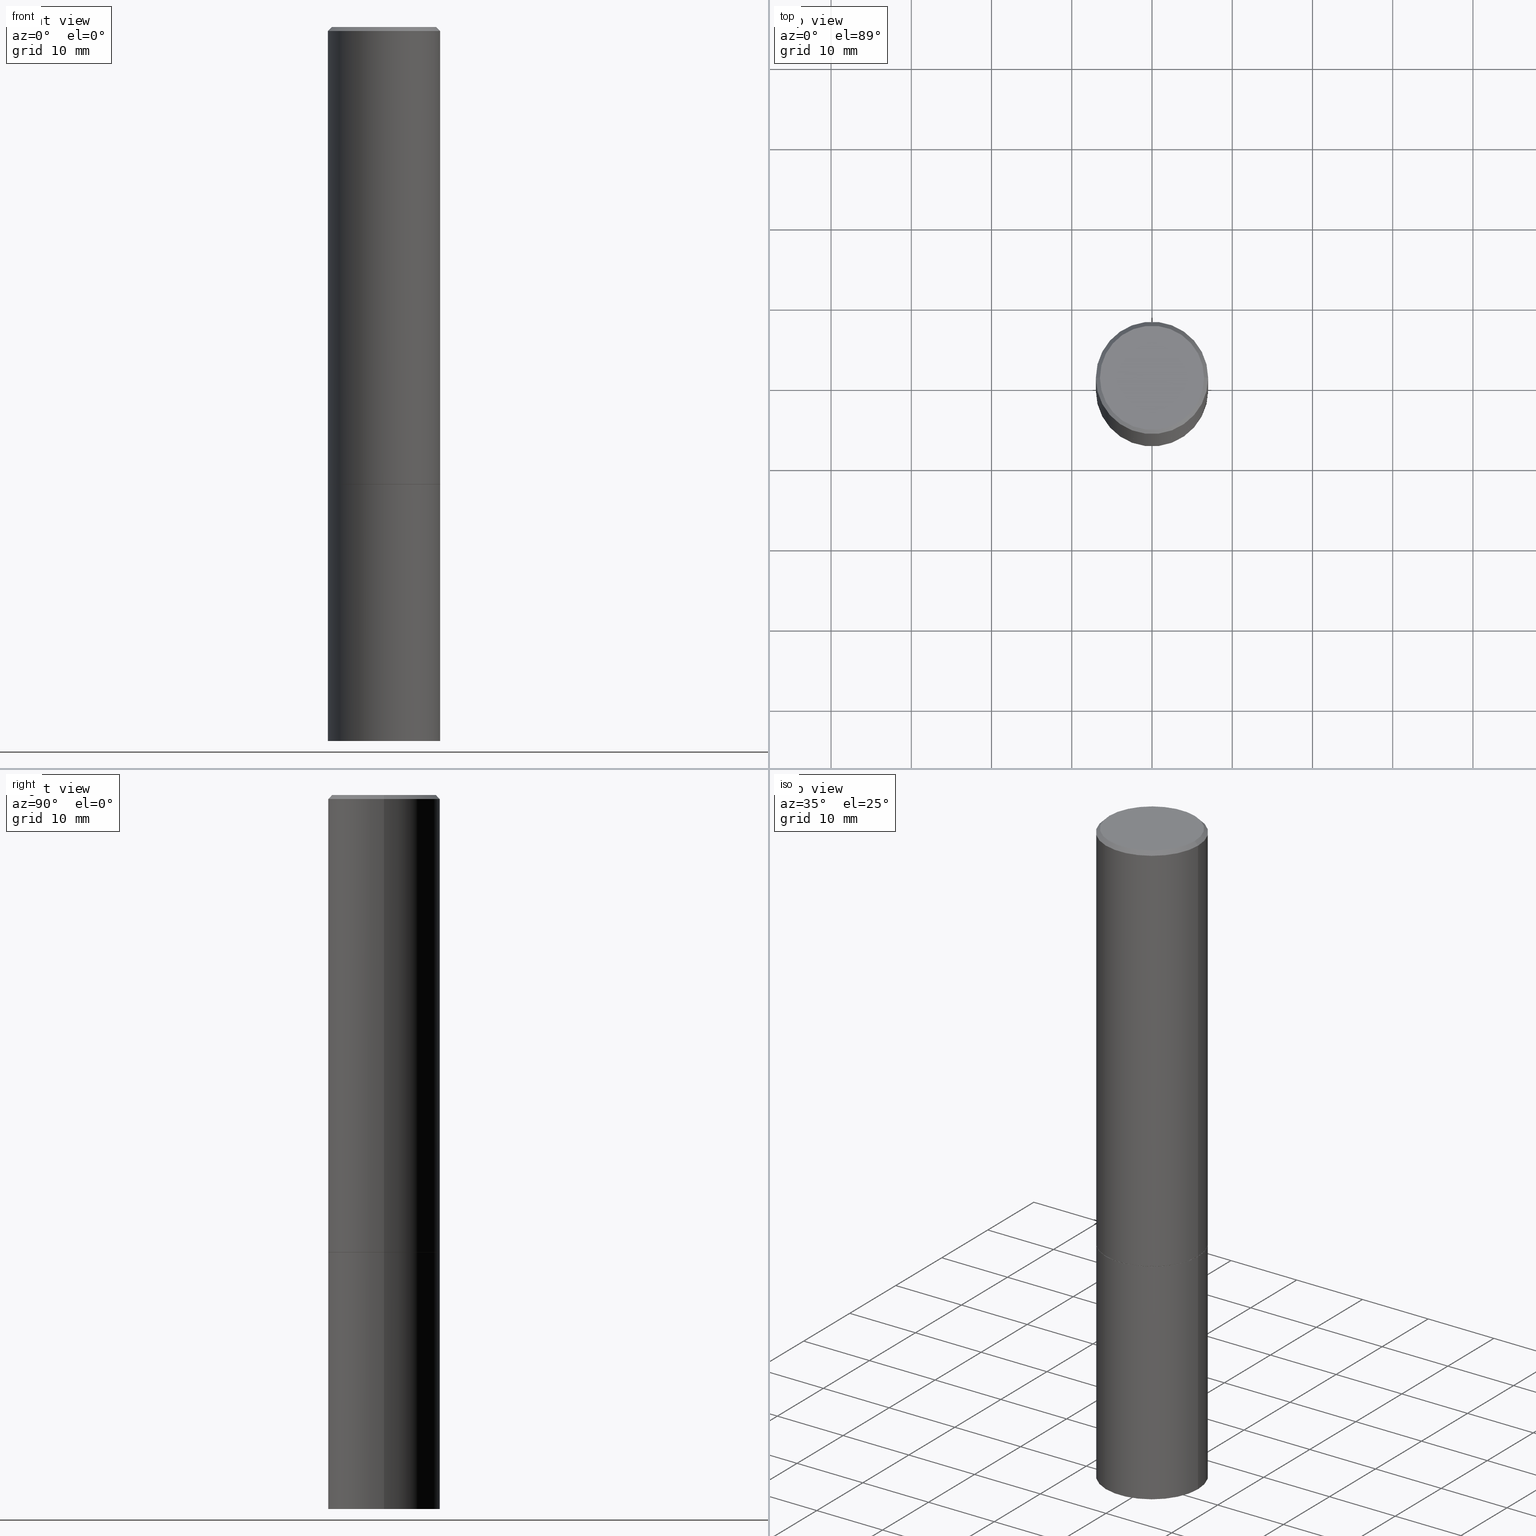
[diagram: canonical four-view strip — front | top / right | iso, engineering-drawing reading convention]
A machine part, canonical four-view strip (front | top / right | iso — engineering-drawing reading convention). The complete STEP part file that produces these views, byte-faithful:
ISO-10303-21;
HEADER;
FILE_DESCRIPTION (( 'STEP AP203' ),
    '1' );
FILE_NAME ('48644.STEP',
    '2024-02-28T12:55:34',
    ( '' ),
    ( '' ),
    'SwSTEP 2.0',
    'SolidWorks 2023',
    '' );
FILE_SCHEMA (( 'CONFIG_CONTROL_DESIGN' ));
ENDSEC;

DATA;
#1 = AXIS2_PLACEMENT_3D ( 'NONE', #161, #223, #277 ) ;
#2 = VECTOR ( 'NONE', #330, 39.37007874015748854 ) ;
#3 = DIRECTION ( 'NONE',  ( 1.000000000000000000, -6.982962677686269866E-15, 0.000000000000000000 ) ) ;
#4 = DIRECTION ( 'NONE',  ( 1.000000000000000000, -6.982962677686269866E-15, 0.000000000000000000 ) ) ;
#5 = DIRECTION ( 'NONE',  ( -2.445468806185136597E-29, 3.491481338843145583E-15, 1.000000000000000000 ) ) ;
#6 = VECTOR ( 'NONE', #332, 39.37007874015748143 ) ;
#7 = DIRECTION ( 'NONE',  ( -1.000000000000000000, 6.982962677686267499E-15, 0.000000000000000000 ) ) ;
#8 = EDGE_CURVE ( 'NONE', #169, #233, #235, .T. ) ;
#9 = APPLICATION_CONTEXT ( 'configuration controlled 3d designs of mechanical parts and assemblies' ) ;
#10 = VECTOR ( 'NONE', #217, 39.37007874015748854 ) ;
#11 = DIRECTION ( 'NONE',  ( -2.445468806185136597E-29, 3.491481338843145583E-15, 1.000000000000000000 ) ) ;
#12 = CARTESIAN_POINT ( 'NONE',  ( 0.2746000000000000107, -9.752754823790549702E-15, -2.244099999999999540 ) ) ;
#13 = DIMENSIONAL_EXPONENTS ( 1.000000000000000000, 0.000000000000000000, 0.000000000000000000, 0.000000000000000000, 0.000000000000000000, 0.000000000000000000, 0.000000000000000000 ) ;
#14 =( NAMED_UNIT ( * ) SI_UNIT ( $, .STERADIAN. ) SOLID_ANGLE_UNIT ( ) );
#15 = EDGE_CURVE ( 'NONE', #203, #286, #32, .T. ) ;
#16 = DIRECTION ( 'NONE',  ( -2.445468806185136597E-29, 3.491481338843145583E-15, 1.000000000000000000 ) ) ;
#17 = DIRECTION ( 'NONE',  ( 2.445468806185136597E-29, -3.491481338843145583E-15, -1.000000000000000000 ) ) ;
#18 = LOCAL_TIME ( 7, 55, 34.00000000000000000, #230 ) ;
#19 = PERSON_AND_ORGANIZATION_ROLE ( 'classification_officer' ) ;
#20 = DIRECTION ( 'NONE',  ( -1.000000000000000000, 6.982962677686265922E-15, -4.876176775795935793E-29 ) ) ;
#21 = ORIENTED_EDGE ( 'NONE', *, *, #296, .T. ) ;
#22 = DATE_TIME_ROLE ( 'creation_date' ) ;
#23 = CLOSED_SHELL ( 'NONE', ( #88, #240, #281, #356 ) ) ;
#24 = ORIENTED_EDGE ( 'NONE', *, *, #311, .T. ) ;
#25 = AXIS2_PLACEMENT_3D ( 'NONE', #353, #358, #42 ) ;
#26 = APPROVAL_STATUS ( 'not_yet_approved' ) ;
#27 = ORIENTED_EDGE ( 'NONE', *, *, #222, .T. ) ;
#28 = APPLICATION_PROTOCOL_DEFINITION ( 'international standard', 'config_control_design', 1994, #9 ) ;
#29 = CC_DESIGN_DATE_AND_TIME_ASSIGNMENT ( #116, #337, ( #207 ) ) ;
#30 = CARTESIAN_POINT ( 'NONE',  ( 1.784845260416607569E-15, 0.2555999999999997163, -8.881541177182066117E-16 ) ) ;
#31 = ORIENTED_EDGE ( 'NONE', *, *, #289, .F. ) ;
#32 = CIRCLE ( 'NONE', #75, 0.2555999999999997163 ) ;
#33 = ORIENTED_EDGE ( 'NONE', *, *, #338, .F. ) ;
#34 = ORIENTED_EDGE ( 'NONE', *, *, #348, .F. ) ;
#35 = CARTESIAN_POINT ( 'NONE',  ( -0.2756000000000000116, -8.076261588080363510E-15, -2.244099999999999540 ) ) ;
#36 = AXIS2_PLACEMENT_3D ( 'NONE', #288, #144, #214 ) ;
#37 = ORIENTED_EDGE ( 'NONE', *, *, #162, .T. ) ;
#38 = ORIENTED_EDGE ( 'NONE', *, *, #362, .T. ) ;
#39 = FACE_OUTER_BOUND ( 'NONE', #261, .T. ) ;
#40 = CIRCLE ( 'NONE', #36, 0.2756000000000000116 ) ;
#41 = DIRECTION ( 'NONE',  ( 1.000000000000000000, -6.982962677686267499E-15, 4.876176775795935793E-29 ) ) ;
#42 = DIRECTION ( 'NONE',  ( 1.000000000000000000, -6.982962677686269866E-15, 0.000000000000000000 ) ) ;
#43 = CARTESIAN_POINT ( 'NONE',  ( -0.2755999999999997896, 1.854674887193470472E-15, -0.02000000000000005940 ) ) ;
#44 = DIRECTION ( 'NONE',  ( 1.000000000000000000, -6.982962677686265922E-15, 0.000000000000000000 ) ) ;
#45 = CALENDAR_DATE ( 2024, 28, 2 ) ;
#46 = ORIENTED_EDGE ( 'NONE', *, *, #279, .T. ) ;
#47 = DATE_AND_TIME ( #53, #232 ) ;
#48 = CARTESIAN_POINT ( 'NONE',  ( -0.2756000000000000116, 1.958255779754836195E-15, -1.355658510874252007E-29 ) ) ;
#49 = VERTEX_POINT ( 'NONE', #345 ) ;
#50 = DIRECTION ( 'NONE',  ( 0.000000000000000000, 0.000000000000000000, 1.000000000000000000 ) ) ;
#51 = CARTESIAN_POINT ( 'NONE',  ( 1.924504513970389780E-15, 0.2755999999999921846, -2.244100000000000428 ) ) ;
#52 = EDGE_LOOP ( 'NONE', ( #322, #37 ) ) ;
#53 = CALENDAR_DATE ( 2024, 28, 2 ) ;
#54 = CARTESIAN_POINT ( 'NONE',  ( 4.890937612370288047E-31, -6.982962677686311331E-17, -0.02000000000000005940 ) ) ;
#55 = VECTOR ( 'NONE', #350, 39.37007874015748143 ) ;
#56 = DATE_AND_TIME ( #316, #114 ) ;
#57 = DIRECTION ( 'NONE',  ( -2.445468806185136597E-29, 3.491481338843145583E-15, 1.000000000000000000 ) ) ;
#58 = ORIENTED_EDGE ( 'NONE', *, *, #204, .F. ) ;
#59 = ORIENTED_EDGE ( 'NONE', *, *, #165, .F. ) ;
#60 = DIRECTION ( 'NONE',  ( 2.445468806185136597E-29, -3.491481338843145583E-15, -1.000000000000000000 ) ) ;
#61 = CIRCLE ( 'NONE', #206, 0.2555999999999997163 ) ;
#62 = AXIS2_PLACEMENT_3D ( 'NONE', #69, #328, #306 ) ;
#63 = LOCAL_TIME ( 7, 55, 34.00000000000000000, #258 ) ;
#64 = DIRECTION ( 'NONE',  ( 1.000000000000000000, -6.982962677686267499E-15, 4.876176775795935793E-29 ) ) ;
#65 = DIRECTION ( 'NONE',  ( -2.445468806185136597E-29, 3.491481338843145583E-15, 1.000000000000000000 ) ) ;
#66 = FACE_OUTER_BOUND ( 'NONE', #154, .T. ) ;
#67 = APPROVAL ( #26, 'UNSPECIFIED' ) ;
#68 = CC_DESIGN_SECURITY_CLASSIFICATION ( #207, ( #357 ) ) ;
#69 = CARTESIAN_POINT ( 'NONE',  ( 0.000000000000000000, 0.000000000000000000, 0.000000000000000000 ) ) ;
#70 = CARTESIAN_POINT ( 'NONE',  ( 5.485431079153878028E-29, -7.831741791159057755E-15, -2.243099999999999206 ) ) ;
#71 = MANIFOLD_SOLID_BREP ( 'Body-Move/Copy2[1]', #23 ) ;
#72 = LINE ( 'NONE', #187, #354 ) ;
#73 = CARTESIAN_POINT ( 'NONE',  ( 4.890937612370288047E-31, -6.982962677686311331E-17, -0.02000000000000005940 ) ) ;
#74 = DIRECTION ( 'NONE',  ( 1.000000000000000000, -6.982962677686265922E-15, 4.876176775795935793E-29 ) ) ;
#75 = AXIS2_PLACEMENT_3D ( 'NONE', #323, #293, #238 ) ;
#76 = AXIS2_PLACEMENT_3D ( 'NONE', #54, #57, #177 ) ;
#77 = DIRECTION ( 'NONE',  ( -2.445468806185136597E-29, 3.491481338843145583E-15, 1.000000000000000000 ) ) ;
#78 = DIRECTION ( 'NONE',  ( 0.7071067811865473507, -7.319954787623256045E-15, -0.7071067811865476838 ) ) ;
#79 = CARTESIAN_POINT ( 'NONE',  ( 0.2756000000000000116, -9.759737786468235716E-15, -2.244099999999999540 ) ) ;
#80 = ORIENTED_EDGE ( 'NONE', *, *, #8, .F. ) ;
#81 = CONICAL_SURFACE ( 'NONE', #106, 0.2746000000000000107, 0.7853981633974482790 ) ;
#82 = AXIS2_PLACEMENT_3D ( 'NONE', #118, #50, #255 ) ;
#83 = ORIENTED_EDGE ( 'NONE', *, *, #267, .F. ) ;
#84 = PERSON_AND_ORGANIZATION_ROLE ( 'creator' ) ;
#85 = EDGE_LOOP ( 'NONE', ( #59, #225 ) ) ;
#86 = CALENDAR_DATE ( 2024, 28, 2 ) ;
#87 = EDGE_LOOP ( 'NONE', ( #24, #46 ) ) ;
#88 = ADVANCED_FACE ( 'NONE', ( #126 ), #300, .T. ) ;
#89 = PERSON_AND_ORGANIZATION ( #294, #153 ) ;
#90 = DIRECTION ( 'NONE',  ( -1.000000000000000000, 6.982962677686265922E-15, -4.876176775795935793E-29 ) ) ;
#91 = CIRCLE ( 'NONE', #1, 0.2756000000000000671 ) ;
#92 = ORIENTED_EDGE ( 'NONE', *, *, #305, .T. ) ;
#93 = DIRECTION ( 'NONE',  ( 1.000000000000000000, -6.982962677686267499E-15, 4.876201967404967742E-29 ) ) ;
#94 = CYLINDRICAL_SURFACE ( 'NONE', #95, 0.2755999999999999006 ) ;
#95 = AXIS2_PLACEMENT_3D ( 'NONE', #181, #65, #344 ) ;
#96 = CIRCLE ( 'NONE', #76, 0.2755999999999997896 ) ;
#97 = ORIENTED_EDGE ( 'NONE', *, *, #311, .F. ) ;
#98 = ORIENTED_EDGE ( 'NONE', *, *, #296, .F. ) ;
#99 = CC_DESIGN_PERSON_AND_ORGANIZATION_ASSIGNMENT ( #364, #19, ( #207 ) ) ;
#100 = CIRCLE ( 'NONE', #292, 0.2746000000000000107 ) ;
#101 = APPROVAL_PERSON_ORGANIZATION ( #163, #231, #110 ) ;
#102 = FACE_OUTER_BOUND ( 'NONE', #85, .T. ) ;
#103 = CARTESIAN_POINT ( 'NONE',  ( 0.2756000000000000671, -9.756246305129392709E-15, -2.243099999999999206 ) ) ;
#104 = CARTESIAN_POINT ( 'NONE',  ( 0.2755999999999997896, -1.960582874962695828E-15, -0.02000000000000005940 ) ) ;
#105 = DIRECTION ( 'NONE',  ( 2.438088387897960049E-29, -3.491481338843145188E-15, -1.000000000000000000 ) ) ;
#106 = AXIS2_PLACEMENT_3D ( 'NONE', #239, #149, #3 ) ;
#107 = ADVANCED_FACE ( 'NONE', ( #266 ), #81, .T. ) ;
#108 = PERSON_AND_ORGANIZATION_ROLE ( 'creator' ) ;
#109 = FACE_OUTER_BOUND ( 'NONE', #282, .T. ) ;
#110 = APPROVAL_ROLE ( '' ) ;
#111 = EDGE_LOOP ( 'NONE', ( #80, #270, #208, #336 ) ) ;
#112 = PERSON_AND_ORGANIZATION ( #294, #153 ) ;
#113 = CONICAL_SURFACE ( 'NONE', #321, 0.2755999999999997896, 0.7853981633974480570 ) ;
#114 = LOCAL_TIME ( 7, 55, 34.00000000000000000, #142 ) ;
#115 = EDGE_LOOP ( 'NONE', ( #318, #307, #21, #83 ) ) ;
#116 = DATE_AND_TIME ( #86, #284 ) ;
#117 = DIRECTION ( 'NONE',  ( 2.438088387897960049E-29, -3.491481338843145188E-15, -1.000000000000000000 ) ) ;
#118 = CARTESIAN_POINT ( 'NONE',  ( 0.000000000000000000, 0.000000000000000000, 0.000000000000000000 ) ) ;
#119 = DIRECTION ( 'NONE',  ( -2.445468806185136877E-29, 3.491481338843145188E-15, 1.000000000000000000 ) ) ;
#120 = ORIENTED_EDGE ( 'NONE', *, *, #289, .T. ) ;
#121 = CARTESIAN_POINT ( 'NONE',  ( 5.487876547960063631E-29, -7.835233272497900762E-15, -2.244099999999999540 ) ) ;
#122 = PRODUCT ( '48644', '48644', '', ( #312 ) ) ;
#123 = CARTESIAN_POINT ( 'NONE',  ( 8.568678149992099474E-29, -1.223380146317249786E-14, -3.503899999999999793 ) ) ;
#124 = CIRCLE ( 'NONE', #363, 0.2755999999999997896 ) ;
#125 = LINE ( 'NONE', #355, #179 ) ;
#126 = FACE_OUTER_BOUND ( 'NONE', #178, .T. ) ;
#127 = LENGTH_MEASURE_WITH_UNIT ( LENGTH_MEASURE( 0.02539999999999999897 ), #271 );
#128 = UNCERTAINTY_MEASURE_WITH_UNIT (LENGTH_MEASURE( 1.000000000000000082E-05 ), #241, 'distance_accuracy_value', 'NONE');
#129 = CARTESIAN_POINT ( 'NONE',  ( 5.487876547960063631E-29, -7.835233272497900762E-15, -2.244099999999999540 ) ) ;
#130 = EDGE_CURVE ( 'NONE', #169, #340, #100, .T. ) ;
#131 = LINE ( 'NONE', #43, #6 ) ;
#132 = LINE ( 'NONE', #12, #2 ) ;
#133 = CARTESIAN_POINT ( 'NONE',  ( -0.2555999999999997163, 1.819760073805039218E-15, 8.537024980188219272E-18 ) ) ;
#134 = DIRECTION ( 'NONE',  ( 1.000000000000000000, -6.982962677686269866E-15, 0.000000000000000000 ) ) ;
#135 = LINE ( 'NONE', #104, #139 ) ;
#136 = PERSON_AND_ORGANIZATION ( #294, #153 ) ;
#137 = APPLICATION_PROTOCOL_DEFINITION ( 'international standard', 'config_control_design', 1994, #359 ) ;
#138 = DATE_AND_TIME ( #45, #18 ) ;
#139 = VECTOR ( 'NONE', #78, 39.37007874015748143 ) ;
#140 = FACE_OUTER_BOUND ( 'NONE', #52, .T. ) ;
#141 = VERTEX_POINT ( 'NONE', #234 ) ;
#142 = COORDINATED_UNIVERSAL_TIME_OFFSET ( 5, 0, .BEHIND. ) ;
#143 = ORIENTED_EDGE ( 'NONE', *, *, #279, .F. ) ;
#144 = DIRECTION ( 'NONE',  ( -2.445468806185136597E-29, 3.491481338843145583E-15, 1.000000000000000000 ) ) ;
#145 = ORIENTED_EDGE ( 'NONE', *, *, #192, .F. ) ;
#146 = ORIENTED_EDGE ( 'NONE', *, *, #130, .F. ) ;
#147 = DIRECTION ( 'NONE',  ( -2.445468806185136597E-29, 3.491481338843145583E-15, 1.000000000000000000 ) ) ;
#148 = ADVANCED_FACE ( 'NONE', ( #66 ), #94, .T. ) ;
#149 = DIRECTION ( 'NONE',  ( -2.445468806185136597E-29, 3.491481338843145583E-15, 1.000000000000000000 ) ) ;
#150 = CARTESIAN_POINT ( 'NONE',  ( 5.487876547960063631E-29, -7.835233272497900762E-15, -2.244099999999999540 ) ) ;
#151 = DIRECTION ( 'NONE',  ( 1.000000000000000000, -6.982962677686265922E-15, 0.000000000000000000 ) ) ;
#152 = AXIS2_PLACEMENT_3D ( 'NONE', #129, #302, #74 ) ;
#153 = ORGANIZATION ( 'UNSPECIFIED', 'UNSPECIFIED', '' ) ;
#154 = EDGE_LOOP ( 'NONE', ( #349, #228, #186, #290 ) ) ;
#155 = CARTESIAN_POINT ( 'NONE',  ( 5.487876547960063631E-29, -7.835233272497900762E-15, -2.244099999999999540 ) ) ;
#156 = FACE_OUTER_BOUND ( 'NONE', #115, .T. ) ;
#157 = PLANE ( 'NONE',  #173 ) ;
#158 = CC_DESIGN_PERSON_AND_ORGANIZATION_ASSIGNMENT ( #309, #84, ( #319 ) ) ;
#159 = CYLINDRICAL_SURFACE ( 'NONE', #62, 0.2756000000000000116 ) ;
#160 = LINE ( 'NONE', #242, #55 ) ;
#161 = CARTESIAN_POINT ( 'NONE',  ( 5.485431079153878028E-29, -7.831741791159057755E-15, -2.243099999999999206 ) ) ;
#162 = EDGE_CURVE ( 'NONE', #286, #203, #61, .T. ) ;
#163 = PERSON_AND_ORGANIZATION ( #294, #153 ) ;
#164 = AXIS2_PLACEMENT_3D ( 'NONE', #150, #211, #278 ) ;
#165 = EDGE_CURVE ( 'NONE', #141, #361, #314, .T. ) ;
#166 = VERTEX_POINT ( 'NONE', #35 ) ;
#167 = APPROVAL_ROLE ( '' ) ;
#168 = CARTESIAN_POINT ( 'NONE',  ( 0.2555999999999997163, -1.857063081596548453E-15, 8.537024980213556806E-18 ) ) ;
#169 = VERTEX_POINT ( 'NONE', #210 ) ;
#170 = PRODUCT_DEFINITION_SHAPE ( 'NONE', 'NONE',  #319 ) ;
#171 = ADVANCED_FACE ( 'NONE', ( #268 ), #113, .T. ) ;
#172 = CALENDAR_DATE ( 2024, 28, 2 ) ;
#173 = AXIS2_PLACEMENT_3D ( 'NONE', #275, #105, #220 ) ;
#174 = CC_DESIGN_APPROVAL ( #67, ( #207 ) ) ;
#175 = ORIENTED_EDGE ( 'NONE', *, *, #15, .F. ) ;
#176 = APPROVAL_ROLE ( '' ) ;
#177 = DIRECTION ( 'NONE',  ( 1.000000000000000000, -6.982962677686267499E-15, 0.000000000000000000 ) ) ;
#178 = EDGE_LOOP ( 'NONE', ( #201, #120, #97, #365 ) ) ;
#179 = VECTOR ( 'NONE', #247, 39.37007874015748143 ) ;
#180 = EDGE_LOOP ( 'NONE', ( #257, #196, #215, #33 ) ) ;
#181 = CARTESIAN_POINT ( 'NONE',  ( 0.000000000000000000, 0.000000000000000000, 0.000000000000000000 ) ) ;
#182 = CARTESIAN_POINT ( 'NONE',  ( -0.2746000000000000107, -5.884082920100665181E-15, -2.244099999999999540 ) ) ;
#183 = CARTESIAN_POINT ( 'NONE',  ( -2.087702828670439639E-46, 2.980686340760894400E-32, 8.537024980200822558E-18 ) ) ;
#184 = AXIS2_PLACEMENT_3D ( 'NONE', #51, #117, #20 ) ;
#185 = APPROVAL_PERSON_ORGANIZATION ( #112, #227, #176 ) ;
#186 = ORIENTED_EDGE ( 'NONE', *, *, #192, .T. ) ;
#187 = CARTESIAN_POINT ( 'NONE',  ( 0.2756000000000000116, -1.924504513970335348E-15, 1.343874319409359987E-29 ) ) ;
#188 = FACE_OUTER_BOUND ( 'NONE', #317, .T. ) ;
#189 = AXIS2_PLACEMENT_3D ( 'NONE', #155, #272, #134 ) ;
#190 = CIRCLE ( 'NONE', #164, 0.2756000000000000116 ) ;
#191 = CYLINDRICAL_SURFACE ( 'NONE', #326, 0.2755999999999999006 ) ;
#192 = EDGE_CURVE ( 'NONE', #335, #49, #125, .T. ) ;
#193 = FACE_OUTER_BOUND ( 'NONE', #111, .T. ) ;
#194 = CARTESIAN_POINT ( 'NONE',  ( 5.487876547960063631E-29, -7.835233272497900762E-15, -2.244099999999999540 ) ) ;
#195 = VERTEX_POINT ( 'NONE', #79 ) ;
#196 = ORIENTED_EDGE ( 'NONE', *, *, #8, .T. ) ;
#197 = PERSON_AND_ORGANIZATION_ROLE ( 'design_owner' ) ;
#198 = APPROVAL_PERSON_ORGANIZATION ( #136, #67, #167 ) ;
#199 = MANIFOLD_SOLID_BREP ( 'Body-Move/Copy2[2]', #253 ) ;
#200 = PLANE ( 'NONE',  #184 ) ;
#201 = ORIENTED_EDGE ( 'NONE', *, *, #165, .T. ) ;
#202 = DIRECTION ( 'NONE',  ( 2.438088387897960049E-29, -3.491481338843145188E-15, -1.000000000000000000 ) ) ;
#203 = VERTEX_POINT ( 'NONE', #133 ) ;
#204 = EDGE_CURVE ( 'NONE', #340, #169, #346, .T. ) ;
#205 = SECURITY_CLASSIFICATION_LEVEL ( 'unclassified' ) ;
#206 = AXIS2_PLACEMENT_3D ( 'NONE', #183, #5, #93 ) ;
#207 = SECURITY_CLASSIFICATION ( '', '', #205 ) ;
#208 = ORIENTED_EDGE ( 'NONE', *, *, #338, .T. ) ;
#209 = CC_DESIGN_PERSON_AND_ORGANIZATION_ASSIGNMENT ( #89, #108, ( #357 ) ) ;
#210 = CARTESIAN_POINT ( 'NONE',  ( -0.2746000000000000107, -5.878784465752442779E-15, -2.244099999999999540 ) ) ;
#211 = DIRECTION ( 'NONE',  ( -2.445468806185136597E-29, 3.491481338843145583E-15, 1.000000000000000000 ) ) ;
#212 = CONICAL_SURFACE ( 'NONE', #25, 0.2746000000000000107, 0.7853981633974482790 ) ;
#213 = EDGE_LOOP ( 'NONE', ( #34, #175, #313, #265 ) ) ;
#214 = DIRECTION ( 'NONE',  ( 1.000000000000000000, -6.982962677686265922E-15, 0.000000000000000000 ) ) ;
#215 = ORIENTED_EDGE ( 'NONE', *, *, #362, .F. ) ;
#216 = CC_DESIGN_PERSON_AND_ORGANIZATION_ASSIGNMENT ( #226, #360, ( #357 ) ) ;
#217 = DIRECTION ( 'NONE',  ( -0.7071067811865474617, 7.493145998870352582E-15, 0.7071067811865474617 ) ) ;
#218 = ADVANCED_FACE ( 'NONE', ( #109 ), #333, .F. ) ;
#219 = CARTESIAN_POINT ( 'NONE',  ( 0.2746000000000000107, -9.752754823790549702E-15, -2.244099999999999540 ) ) ;
#220 = DIRECTION ( 'NONE',  ( -1.000000000000000000, 6.982962677686265922E-15, -4.876176775795935793E-29 ) ) ;
#221 = CARTESIAN_POINT ( 'NONE',  ( 4.890937612370288047E-31, -6.982962677686311331E-17, -0.02000000000000005940 ) ) ;
#222 = EDGE_CURVE ( 'NONE', #233, #262, #160, .T. ) ;
#223 = DIRECTION ( 'NONE',  ( -2.445468806185136597E-29, 3.491481338843145583E-15, 1.000000000000000000 ) ) ;
#224 = PERSON_AND_ORGANIZATION ( #294, #153 ) ;
#225 = ORIENTED_EDGE ( 'NONE', *, *, #305, .F. ) ;
#226 = PERSON_AND_ORGANIZATION ( #294, #153 ) ;
#227 = APPROVAL ( #308, 'UNSPECIFIED' ) ;
#228 = ORIENTED_EDGE ( 'NONE', *, *, #269, .T. ) ;
#229 = APPROVAL_DATE_TIME ( #138, #227 ) ;
#230 = COORDINATED_UNIVERSAL_TIME_OFFSET ( 5, 0, .BEHIND. ) ;
#231 = APPROVAL ( #260, 'UNSPECIFIED' ) ;
#232 = LOCAL_TIME ( 7, 55, 34.00000000000000000, #280 ) ;
#233 = VERTEX_POINT ( 'NONE', #352 ) ;
#234 = CARTESIAN_POINT ( 'NONE',  ( 0.2756000000000000116, -1.415830597714283281E-14, -3.503899999999999793 ) ) ;
#235 = LINE ( 'NONE', #182, #10 ) ;
#236 =( GEOMETRIC_REPRESENTATION_CONTEXT ( 3 ) GLOBAL_UNCERTAINTY_ASSIGNED_CONTEXT ( ( #128 ) ) GLOBAL_UNIT_ASSIGNED_CONTEXT ( ( #241, #244, #14 ) ) REPRESENTATION_CONTEXT ( 'NONE', 'WORKASPACE' ) );
#237 = ADVANCED_FACE ( 'NONE', ( #188 ), #191, .T. ) ;
#238 = DIRECTION ( 'NONE',  ( 1.000000000000000000, -6.982962677686267499E-15, 4.876201967404967742E-29 ) ) ;
#239 = CARTESIAN_POINT ( 'NONE',  ( 5.487876547960063631E-29, -7.835233272497900762E-15, -2.244099999999999540 ) ) ;
#240 = ADVANCED_FACE ( 'NONE', ( #102 ), #157, .T. ) ;
#241 =( CONVERSION_BASED_UNIT ( 'INCH', #127 ) LENGTH_UNIT ( ) NAMED_UNIT ( #13 ) );
#242 = CARTESIAN_POINT ( 'NONE',  ( -0.2755999999999999006, 1.958255779754835406E-15, -1.355658510874251446E-29 ) ) ;
#243 = AXIS2_PLACEMENT_3D ( 'NONE', #320, #147, #64 ) ;
#244 =( NAMED_UNIT ( * ) PLANE_ANGLE_UNIT ( ) SI_UNIT ( $, .RADIAN. ) );
#245 = DIRECTION ( 'NONE',  ( 1.000000000000000000, -6.982962677686264344E-15, 0.000000000000000000 ) ) ;
#246 = EDGE_CURVE ( 'NONE', #262, #49, #124, .T. ) ;
#247 = DIRECTION ( 'NONE',  ( -2.445468806185136877E-29, 3.491481338843145188E-15, 1.000000000000000000 ) ) ;
#248 = CARTESIAN_POINT ( 'NONE',  ( 0.000000000000000000, 0.000000000000000000, 0.000000000000000000 ) ) ;
#249 = VECTOR ( 'NONE', #119, 39.37007874015748143 ) ;
#250 = SHAPE_DEFINITION_REPRESENTATION ( #170, #259 ) ;
#251 = COORDINATED_UNIVERSAL_TIME_OFFSET ( 5, 0, .BEHIND. ) ;
#252 = ORIENTED_EDGE ( 'NONE', *, *, #263, .T. ) ;
#253 = CLOSED_SHELL ( 'NONE', ( #107, #237, #341, #171, #148, #329, #218, #291 ) ) ;
#254 = CC_DESIGN_APPROVAL ( #231, ( #357 ) ) ;
#255 = DIRECTION ( 'NONE',  ( 1.000000000000000000, 0.000000000000000000, 0.000000000000000000 ) ) ;
#256 = PLANE ( 'NONE',  #347 ) ;
#257 = ORIENTED_EDGE ( 'NONE', *, *, #204, .T. ) ;
#258 = COORDINATED_UNIVERSAL_TIME_OFFSET ( 5, 0, .BEHIND. ) ;
#259 = ADVANCED_BREP_SHAPE_REPRESENTATION ( '48644', ( #71, #199, #82 ), #236 ) ;
#260 = APPROVAL_STATUS ( 'not_yet_approved' ) ;
#261 = EDGE_LOOP ( 'NONE', ( #31, #92, #252, #143 ) ) ;
#262 = VERTEX_POINT ( 'NONE', #304 ) ;
#263 = EDGE_CURVE ( 'NONE', #141, #195, #72, .T. ) ;
#264 = DESIGN_CONTEXT ( 'detailed design', #9, 'design' ) ;
#265 = ORIENTED_EDGE ( 'NONE', *, *, #246, .T. ) ;
#266 = FACE_OUTER_BOUND ( 'NONE', #180, .T. ) ;
#267 = EDGE_CURVE ( 'NONE', #203, #262, #131, .T. ) ;
#268 = FACE_OUTER_BOUND ( 'NONE', #213, .T. ) ;
#269 = EDGE_CURVE ( 'NONE', #233, #335, #91, .T. ) ;
#270 = ORIENTED_EDGE ( 'NONE', *, *, #130, .T. ) ;
#271 =( LENGTH_UNIT ( ) NAMED_UNIT ( * ) SI_UNIT ( $, .METRE. ) );
#272 = DIRECTION ( 'NONE',  ( -2.445468806185136597E-29, 3.491481338843145583E-15, 1.000000000000000000 ) ) ;
#273 = DIRECTION ( 'NONE',  ( -1.000000000000000000, 6.982962677686267499E-15, 0.000000000000000000 ) ) ;
#274 = DIRECTION ( 'NONE',  ( -2.445468806185136597E-29, 3.491481338843145583E-15, 1.000000000000000000 ) ) ;
#275 = CARTESIAN_POINT ( 'NONE',  ( 1.924504513970420545E-15, 0.2755999999999877992, -3.503900000000000681 ) ) ;
#276 = CC_DESIGN_PERSON_AND_ORGANIZATION_ASSIGNMENT ( #224, #197, ( #122 ) ) ;
#277 = DIRECTION ( 'NONE',  ( 1.000000000000000000, -6.982962677686264344E-15, 0.000000000000000000 ) ) ;
#278 = DIRECTION ( 'NONE',  ( 1.000000000000000000, -6.982962677686265922E-15, 0.000000000000000000 ) ) ;
#279 = EDGE_CURVE ( 'NONE', #166, #195, #297, .T. ) ;
#280 = COORDINATED_UNIVERSAL_TIME_OFFSET ( 5, 0, .BEHIND. ) ;
#281 = ADVANCED_FACE ( 'NONE', ( #334 ), #200, .F. ) ;
#282 = EDGE_LOOP ( 'NONE', ( #58, #146 ) ) ;
#283 = AXIS2_PLACEMENT_3D ( 'NONE', #123, #295, #151 ) ;
#284 = LOCAL_TIME ( 7, 55, 34.00000000000000000, #251 ) ;
#285 = DATE_AND_TIME ( #172, #63 ) ;
#286 = VERTEX_POINT ( 'NONE', #168 ) ;
#287 = APPROVAL_DATE_TIME ( #56, #67 ) ;
#288 = CARTESIAN_POINT ( 'NONE',  ( 8.568678149992099474E-29, -1.223380146317249786E-14, -3.503899999999999793 ) ) ;
#289 = EDGE_CURVE ( 'NONE', #361, #166, #310, .T. ) ;
#290 = ORIENTED_EDGE ( 'NONE', *, *, #246, .F. ) ;
#291 = ADVANCED_FACE ( 'NONE', ( #140 ), #256, .F. ) ;
#292 = AXIS2_PLACEMENT_3D ( 'NONE', #121, #325, #4 ) ;
#293 = DIRECTION ( 'NONE',  ( -2.445468806185136597E-29, 3.491481338843145583E-15, 1.000000000000000000 ) ) ;
#294 = PERSON ( 'UNSPECIFIED', 'UNSPECIFIED', 'UNSPECIFIED', ('UNSPECIFIED'), ('UNSPECIFIED'), ('UNSPECIFIED') ) ;
#295 = DIRECTION ( 'NONE',  ( -2.445468806185136597E-29, 3.491481338843145583E-15, 1.000000000000000000 ) ) ;
#296 = EDGE_CURVE ( 'NONE', #49, #262, #96, .T. ) ;
#297 = CIRCLE ( 'NONE', #342, 0.2756000000000000116 ) ;
#298 = AXIS2_PLACEMENT_3D ( 'NONE', #70, #274, #245 ) ;
#299 = CARTESIAN_POINT ( 'NONE',  ( 4.890937612370288047E-31, -6.982962677686311331E-17, -0.02000000000000005940 ) ) ;
#300 = CYLINDRICAL_SURFACE ( 'NONE', #243, 0.2756000000000000116 ) ;
#301 = DIRECTION ( 'NONE',  ( -2.445468806185136877E-29, 3.491481338843145188E-15, 1.000000000000000000 ) ) ;
#302 = DIRECTION ( 'NONE',  ( -2.438088387897960049E-29, 3.491481338843145188E-15, 1.000000000000000000 ) ) ;
#303 = CONICAL_SURFACE ( 'NONE', #315, 0.2755999999999997896, 0.7853981633974480570 ) ;
#304 = CARTESIAN_POINT ( 'NONE',  ( -0.2755999999999997896, 1.854674887193470472E-15, -0.02000000000000005940 ) ) ;
#305 = EDGE_CURVE ( 'NONE', #361, #141, #40, .T. ) ;
#306 = DIRECTION ( 'NONE',  ( 1.000000000000000000, -6.982962677686267499E-15, 4.876176775795935793E-29 ) ) ;
#307 = ORIENTED_EDGE ( 'NONE', *, *, #348, .T. ) ;
#308 = APPROVAL_STATUS ( 'not_yet_approved' ) ;
#309 = PERSON_AND_ORGANIZATION ( #294, #153 ) ;
#310 = LINE ( 'NONE', #48, #249 ) ;
#311 = EDGE_CURVE ( 'NONE', #195, #166, #190, .T. ) ;
#312 = MECHANICAL_CONTEXT ( 'NONE', #359, 'mechanical' ) ;
#313 = ORIENTED_EDGE ( 'NONE', *, *, #267, .T. ) ;
#314 = CIRCLE ( 'NONE', #283, 0.2756000000000000116 ) ;
#315 = AXIS2_PLACEMENT_3D ( 'NONE', #73, #17, #273 ) ;
#316 = CALENDAR_DATE ( 2024, 28, 2 ) ;
#317 = EDGE_LOOP ( 'NONE', ( #38, #27, #98, #145 ) ) ;
#318 = ORIENTED_EDGE ( 'NONE', *, *, #162, .F. ) ;
#319 = PRODUCT_DEFINITION ( 'UNKNOWN', '', #357, #264 ) ;
#320 = CARTESIAN_POINT ( 'NONE',  ( 0.000000000000000000, 0.000000000000000000, 0.000000000000000000 ) ) ;
#321 = AXIS2_PLACEMENT_3D ( 'NONE', #299, #60, #7 ) ;
#322 = ORIENTED_EDGE ( 'NONE', *, *, #15, .T. ) ;
#323 = CARTESIAN_POINT ( 'NONE',  ( -2.087702828670439639E-46, 2.980686340760894400E-32, 8.537024980200822558E-18 ) ) ;
#324 = CC_DESIGN_DATE_AND_TIME_ASSIGNMENT ( #47, #22, ( #319 ) ) ;
#325 = DIRECTION ( 'NONE',  ( -2.445468806185136597E-29, 3.491481338843145583E-15, 1.000000000000000000 ) ) ;
#326 = AXIS2_PLACEMENT_3D ( 'NONE', #248, #77, #41 ) ;
#327 = CC_DESIGN_APPROVAL ( #227, ( #319 ) ) ;
#328 = DIRECTION ( 'NONE',  ( -2.445468806185136597E-29, 3.491481338843145583E-15, 1.000000000000000000 ) ) ;
#329 = ADVANCED_FACE ( 'NONE', ( #193 ), #212, .T. ) ;
#330 = DIRECTION ( 'NONE',  ( 0.7071067811865474617, -2.468850131082256666E-15, 0.7071067811865474617 ) ) ;
#331 = DIRECTION ( 'NONE',  ( 1.000000000000000000, -6.982962677686267499E-15, 0.000000000000000000 ) ) ;
#332 = DIRECTION ( 'NONE',  ( -0.7071067811865473507, 2.468850131082255088E-15, -0.7071067811865476838 ) ) ;
#333 = PLANE ( 'NONE',  #152 ) ;
#334 = FACE_OUTER_BOUND ( 'NONE', #87, .T. ) ;
#335 = VERTEX_POINT ( 'NONE', #103 ) ;
#336 = ORIENTED_EDGE ( 'NONE', *, *, #269, .F. ) ;
#337 = DATE_TIME_ROLE ( 'classification_date' ) ;
#338 = EDGE_CURVE ( 'NONE', #340, #335, #132, .T. ) ;
#339 = APPROVAL_DATE_TIME ( #285, #231 ) ;
#340 = VERTEX_POINT ( 'NONE', #219 ) ;
#341 = ADVANCED_FACE ( 'NONE', ( #156 ), #303, .T. ) ;
#342 = AXIS2_PLACEMENT_3D ( 'NONE', #194, #16, #44 ) ;
#343 = CIRCLE ( 'NONE', #298, 0.2756000000000000671 ) ;
#344 = DIRECTION ( 'NONE',  ( 1.000000000000000000, -6.982962677686267499E-15, 4.876176775795935793E-29 ) ) ;
#345 = CARTESIAN_POINT ( 'NONE',  ( 0.2755999999999997896, -1.960582874962695828E-15, -0.02000000000000005940 ) ) ;
#346 = CIRCLE ( 'NONE', #189, 0.2746000000000000107 ) ;
#347 = AXIS2_PLACEMENT_3D ( 'NONE', #30, #202, #90 ) ;
#348 = EDGE_CURVE ( 'NONE', #286, #49, #135, .T. ) ;
#349 = ORIENTED_EDGE ( 'NONE', *, *, #222, .F. ) ;
#350 = DIRECTION ( 'NONE',  ( -2.445468806185136877E-29, 3.491481338843145188E-15, 1.000000000000000000 ) ) ;
#351 = CARTESIAN_POINT ( 'NONE',  ( -0.2756000000000000116, -8.076261588080363510E-15, -3.503899999999999793 ) ) ;
#352 = CARTESIAN_POINT ( 'NONE',  ( -0.2756000000000000671, -1.992529929213121965E-15, -2.243099999999999206 ) ) ;
#353 = CARTESIAN_POINT ( 'NONE',  ( 5.487876547960063631E-29, -7.835233272497900762E-15, -2.244099999999999540 ) ) ;
#354 = VECTOR ( 'NONE', #301, 39.37007874015748143 ) ;
#355 = CARTESIAN_POINT ( 'NONE',  ( 0.2755999999999999006, -1.924504513970334560E-15, 1.343874319409359427E-29 ) ) ;
#356 = ADVANCED_FACE ( 'NONE', ( #39 ), #159, .T. ) ;
#357 = PRODUCT_DEFINITION_FORMATION_WITH_SPECIFIED_SOURCE ( 'ANY', '', #122, .NOT_KNOWN. ) ;
#358 = DIRECTION ( 'NONE',  ( -2.445468806185136597E-29, 3.491481338843145583E-15, 1.000000000000000000 ) ) ;
#359 = APPLICATION_CONTEXT ( 'configuration controlled 3d designs of mechanical parts and assemblies' ) ;
#360 = PERSON_AND_ORGANIZATION_ROLE ( 'design_supplier' ) ;
#361 = VERTEX_POINT ( 'NONE', #351 ) ;
#362 = EDGE_CURVE ( 'NONE', #335, #233, #343, .T. ) ;
#363 = AXIS2_PLACEMENT_3D ( 'NONE', #221, #11, #331 ) ;
#364 = PERSON_AND_ORGANIZATION ( #294, #153 ) ;
#365 = ORIENTED_EDGE ( 'NONE', *, *, #263, .F. ) ;
#366 = PRODUCT_RELATED_PRODUCT_CATEGORY ( 'detail', '', ( #122 ) ) ;
ENDSEC;
END-ISO-10303-21;
